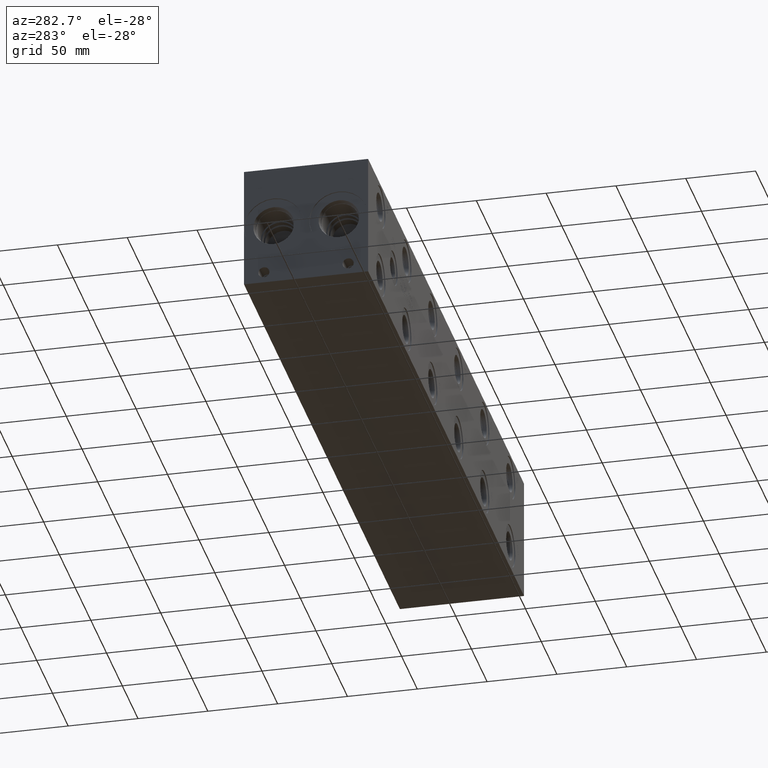
[diagram: clean part render]
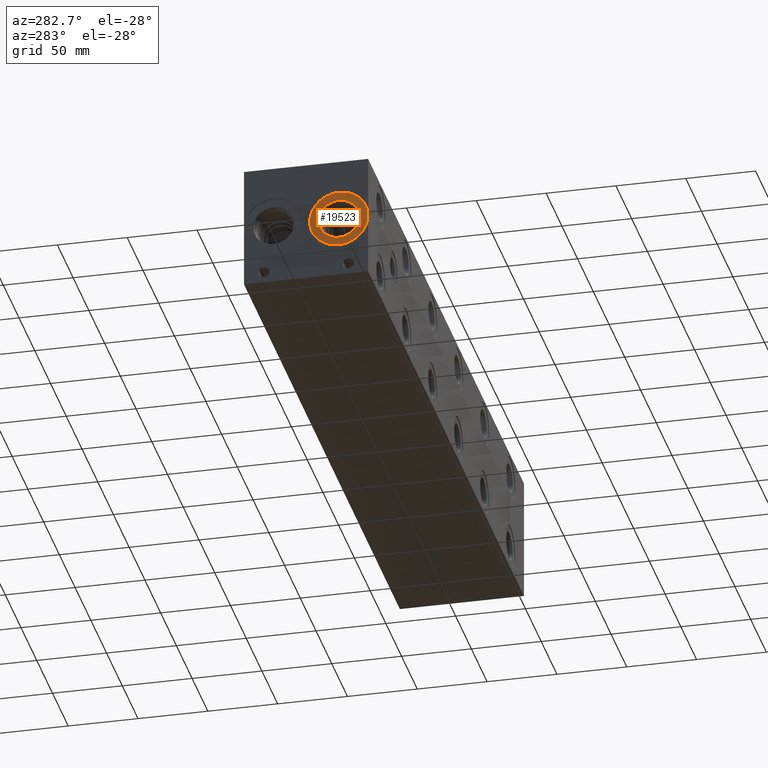
[diagram: same view with one face highlighted and labeled with its STEP entity id]
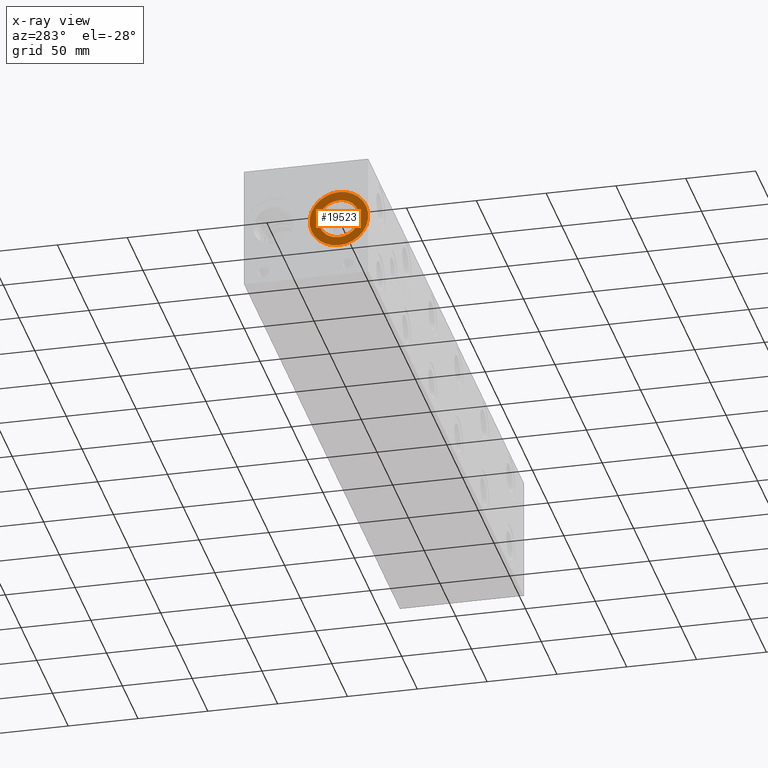
[diagram: x-ray of the same camera — body ghosted, the highlighted face saturated]
A machine part, auxiliary view. The second image highlights one B-rep face of the part: STEP entity #19523.
The next image is the same camera in x-ray: the body ghosted, the highlighted face saturated — about 0% of this face is hidden behind the body in this view.
In plain terms, the highlighted planar face has unit normal (1, 0, 0).
Its self-contained STEP definition (entity closure, byte-faithful):
#448=CIRCLE('',#20469,21.0185);
#449=CIRCLE('',#20470,21.0185);
#450=CIRCLE('',#20472,14.5923);
#451=CIRCLE('',#20473,14.5923);
#1051=FACE_BOUND('',#3758,.T.);
#2620=FACE_OUTER_BOUND('',#3757,.T.);
#3757=EDGE_LOOP('',(#16090,#16091));
#3758=EDGE_LOOP('',(#16092,#16093));
#8791=VERTEX_POINT('',#33075);
#8792=VERTEX_POINT('',#33077);
#8793=VERTEX_POINT('',#33081);
#8794=VERTEX_POINT('',#33082);
#11370=EDGE_CURVE('',#8791,#8792,#448,.T.);
#11371=EDGE_CURVE('',#8792,#8791,#449,.T.);
#11372=EDGE_CURVE('',#8793,#8794,#450,.T.);
#11373=EDGE_CURVE('',#8794,#8793,#451,.T.);
#16090=ORIENTED_EDGE('',*,*,#11371,.F.);
#16091=ORIENTED_EDGE('',*,*,#11370,.F.);
#16092=ORIENTED_EDGE('',*,*,#11372,.T.);
#16093=ORIENTED_EDGE('',*,*,#11373,.T.);
#18088=PLANE('',#20471);
#19523=ADVANCED_FACE('',(#2620,#1051),#18088,.F.);
#20469=AXIS2_PLACEMENT_3D('',#33078,#23916,#23917);
#20470=AXIS2_PLACEMENT_3D('',#33079,#23918,#23919);
#20471=AXIS2_PLACEMENT_3D('',#33080,#23920,#23921);
#20472=AXIS2_PLACEMENT_3D('',#33083,#23922,#23923);
#20473=AXIS2_PLACEMENT_3D('',#33084,#23924,#23925);
#23916=DIRECTION('center_axis',(1.,0.,0.));
#23917=DIRECTION('ref_axis',(0.,0.,-1.));
#23918=DIRECTION('center_axis',(1.,0.,0.));
#23919=DIRECTION('ref_axis',(0.,0.,-1.));
#23920=DIRECTION('center_axis',(1.,0.,0.));
#23921=DIRECTION('ref_axis',(0.,0.,-1.));
#23922=DIRECTION('center_axis',(1.,0.,0.));
#23923=DIRECTION('ref_axis',(0.,0.,-1.));
#23924=DIRECTION('center_axis',(1.,0.,0.));
#23925=DIRECTION('ref_axis',(0.,0.,-1.));
#33075=CARTESIAN_POINT('',(0.7874,21.082,23.4315));
#33077=CARTESIAN_POINT('',(0.7874,21.082,65.4685));
#33078=CARTESIAN_POINT('Origin',(0.7874,21.082,44.45));
#33079=CARTESIAN_POINT('Origin',(0.7874,21.082,44.45));
#33080=CARTESIAN_POINT('Origin',(0.7874,21.082,59.0423));
#33081=CARTESIAN_POINT('',(0.7874,21.082,59.0423));
#33082=CARTESIAN_POINT('',(0.787399999999999,21.082,29.8577));
#33083=CARTESIAN_POINT('Origin',(0.7874,21.082,44.45));
#33084=CARTESIAN_POINT('Origin',(0.7874,21.082,44.45));